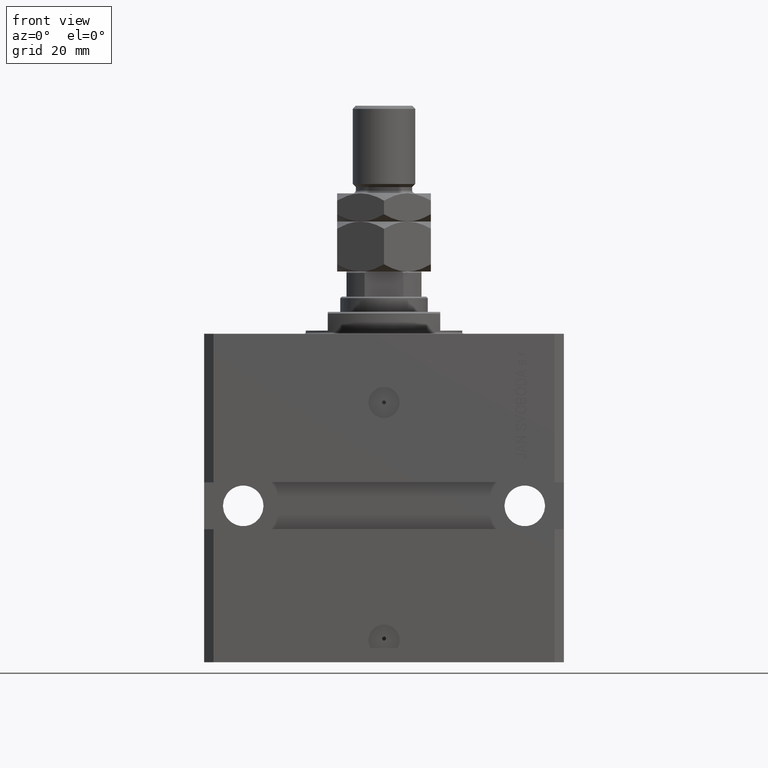
[diagram: clean part render]
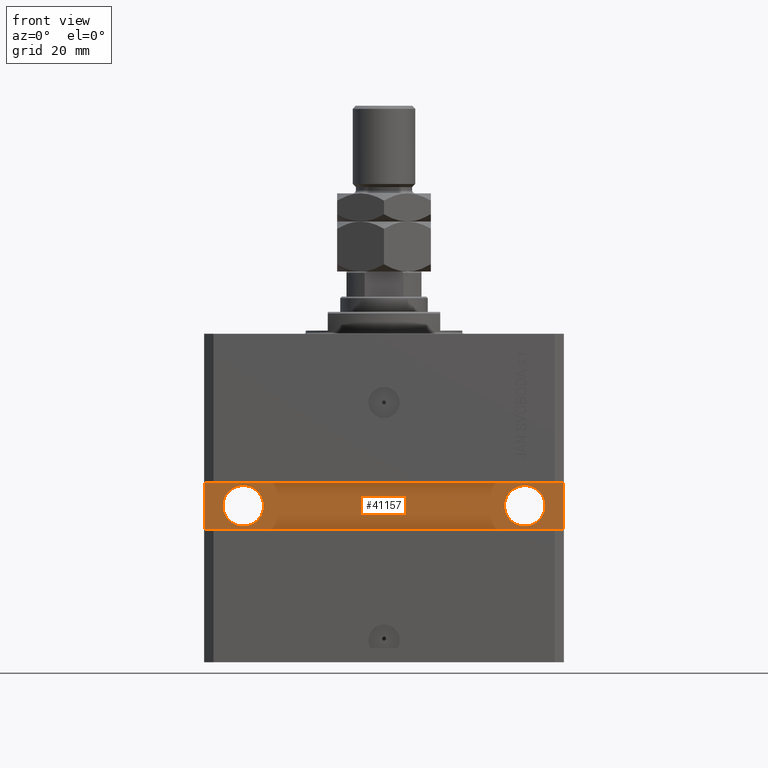
[diagram: same view with one face highlighted and labeled with its STEP entity id]
A machine part, front view. The second image highlights one B-rep face of the part: STEP entity #41157.
In plain terms, the highlighted planar face has unit normal (0, -1, 0).
Its self-contained STEP definition (entity closure, byte-faithful):
#283 = EDGE_CURVE ( 'NONE', #22825, #22924, #6146, .T. ) ;
#676 = CARTESIAN_POINT ( 'NONE',  ( -44.99999999999998579, -40.00000000000000000, -55.00000000000001421 ) ) ;
#725 = CARTESIAN_POINT ( 'NONE',  ( -51.49999999999998579, -40.00000000000000000, -55.00000000000001421 ) ) ;
#931 = CARTESIAN_POINT ( 'NONE',  ( -38.49999999999998579, -40.00000000000000000, -55.00000000000001421 ) ) ;
#1103 = PLANE ( 'NONE',  #8223 ) ;
#1558 = CARTESIAN_POINT ( 'NONE',  ( -57.50000000000000711, -40.00000000000000000, -47.50000000000000711 ) ) ;
#2256 = EDGE_CURVE ( 'NONE', #26719, #3967, #21126, .T. ) ;
#2410 = EDGE_CURVE ( 'NONE', #47964, #25509, #44628, .T. ) ;
#2472 = ORIENTED_EDGE ( 'NONE', *, *, #33843, .T. ) ;
#2858 = CARTESIAN_POINT ( 'NONE',  ( 57.50000000000000711, -39.99999999999998579, -47.49999999999997868 ) ) ;
#3967 = VERTEX_POINT ( 'NONE', #931 ) ;
#4265 = VECTOR ( 'NONE', #20030, 1000.000000000000000 ) ;
#4520 = CARTESIAN_POINT ( 'NONE',  ( 57.50000000000000711, -39.99999999999998579, -62.50000000000000000 ) ) ;
#4654 = DIRECTION ( 'NONE',  ( 1.000000000000000000, 0.000000000000000000, 0.000000000000000000 ) ) ;
#4894 = FACE_BOUND ( 'NONE', #24817, .T. ) ;
#5024 = EDGE_LOOP ( 'NONE', ( #49401, #2472, #10627, #23831 ) ) ;
#6146 = LINE ( 'NONE', #2858, #36461 ) ;
#6229 = ORIENTED_EDGE ( 'NONE', *, *, #2410, .F. ) ;
#7558 = LINE ( 'NONE', #27886, #35887 ) ;
#7810 = DIRECTION ( 'NONE',  ( 1.000000000000000000, 1.206764157201257045E-16, 0.000000000000000000 ) ) ;
#7838 = LINE ( 'NONE', #4520, #4265 ) ;
#8223 = AXIS2_PLACEMENT_3D ( 'NONE', #36179, #16608, #47354 ) ;
#8472 = DIRECTION ( 'NONE',  ( 7.680174481697266334E-17, -1.000000000000000000, 1.232595164407830946E-32 ) ) ;
#9700 = CARTESIAN_POINT ( 'NONE',  ( -44.99999999999998579, -40.00000000000000000, -55.00000000000001421 ) ) ;
#10627 = ORIENTED_EDGE ( 'NONE', *, *, #283, .T. ) ;
#11026 = EDGE_CURVE ( 'NONE', #22924, #23260, #39459, .T. ) ;
#11186 = AXIS2_PLACEMENT_3D ( 'NONE', #28299, #8472, #4654 ) ;
#13813 = AXIS2_PLACEMENT_3D ( 'NONE', #9700, #40468, #33372 ) ;
#16383 = CIRCLE ( 'NONE', #25362, 6.499999999999999112 ) ;
#16608 = DIRECTION ( 'NONE',  ( 1.206764157201257045E-16, -1.000000000000000000, 0.000000000000000000 ) ) ;
#20030 = DIRECTION ( 'NONE',  ( 0.000000000000000000, 0.000000000000000000, 1.000000000000000000 ) ) ;
#21126 = CIRCLE ( 'NONE', #13813, 6.499999999999999112 ) ;
#21305 = VECTOR ( 'NONE', #28035, 1000.000000000000000 ) ;
#22787 = AXIS2_PLACEMENT_3D ( 'NONE', #37944, #49095, #42246 ) ;
#22825 = VERTEX_POINT ( 'NONE', #29630 ) ;
#22924 = VERTEX_POINT ( 'NONE', #27564 ) ;
#23062 = EDGE_CURVE ( 'NONE', #25509, #47964, #36356, .T. ) ;
#23214 = ORIENTED_EDGE ( 'NONE', *, *, #23062, .F. ) ;
#23260 = VERTEX_POINT ( 'NONE', #44525 ) ;
#23831 = ORIENTED_EDGE ( 'NONE', *, *, #11026, .T. ) ;
#24817 = EDGE_LOOP ( 'NONE', ( #29650, #26248 ) ) ;
#25362 = AXIS2_PLACEMENT_3D ( 'NONE', #676, #39324, #31470 ) ;
#25509 = VERTEX_POINT ( 'NONE', #49840 ) ;
#26248 = ORIENTED_EDGE ( 'NONE', *, *, #2256, .F. ) ;
#26719 = VERTEX_POINT ( 'NONE', #725 ) ;
#27151 = CARTESIAN_POINT ( 'NONE',  ( 57.50000000000000711, -39.99999999999998579, -62.50000000000000000 ) ) ;
#27564 = CARTESIAN_POINT ( 'NONE',  ( -57.50000000000000711, -40.00000000000000000, -47.50000000000000711 ) ) ;
#27886 = CARTESIAN_POINT ( 'NONE',  ( -57.50000000000000711, -40.00000000000000000, -62.50000000000000000 ) ) ;
#28035 = DIRECTION ( 'NONE',  ( 0.000000000000000000, 0.000000000000000000, -1.000000000000000000 ) ) ;
#28299 = CARTESIAN_POINT ( 'NONE',  ( 45.00000000000001421, -39.99999999999999289, -55.00000000000000000 ) ) ;
#29630 = CARTESIAN_POINT ( 'NONE',  ( 57.50000000000000711, -39.99999999999998579, -47.49999999999997868 ) ) ;
#29650 = ORIENTED_EDGE ( 'NONE', *, *, #36682, .F. ) ;
#31470 = DIRECTION ( 'NONE',  ( 1.000000000000000000, 0.000000000000000000, 0.000000000000000000 ) ) ;
#32363 = FACE_OUTER_BOUND ( 'NONE', #5024, .T. ) ;
#33372 = DIRECTION ( 'NONE',  ( 1.000000000000000000, 0.000000000000000000, 0.000000000000000000 ) ) ;
#33843 = EDGE_CURVE ( 'NONE', #49414, #22825, #7838, .T. ) ;
#35887 = VECTOR ( 'NONE', #7810, 1000.000000000000000 ) ;
#36179 = CARTESIAN_POINT ( 'NONE',  ( 4.842396851142260860E-15, -39.99999999999999289, 0.000000000000000000 ) ) ;
#36356 = CIRCLE ( 'NONE', #11186, 6.499999999999999112 ) ;
#36461 = VECTOR ( 'NONE', #48589, 1000.000000000000000 ) ;
#36682 = EDGE_CURVE ( 'NONE', #3967, #26719, #16383, .T. ) ;
#36738 = EDGE_CURVE ( 'NONE', #23260, #49414, #7558, .T. ) ;
#37944 = CARTESIAN_POINT ( 'NONE',  ( 45.00000000000001421, -39.99999999999999289, -55.00000000000000000 ) ) ;
#39324 = DIRECTION ( 'NONE',  ( 1.101411730780568590E-16, -1.000000000000000000, 0.000000000000000000 ) ) ;
#39459 = LINE ( 'NONE', #1558, #21305 ) ;
#39488 = FACE_BOUND ( 'NONE', #49815, .T. ) ;
#40468 = DIRECTION ( 'NONE',  ( 1.101411730780568590E-16, -1.000000000000000000, 0.000000000000000000 ) ) ;
#41157 = ADVANCED_FACE ( 'NONE', ( #39488, #4894, #32363 ), #1103, .T. ) ;
#42246 = DIRECTION ( 'NONE',  ( 1.000000000000000000, 0.000000000000000000, 0.000000000000000000 ) ) ;
#44525 = CARTESIAN_POINT ( 'NONE',  ( -57.50000000000000711, -40.00000000000000000, -62.50000000000000000 ) ) ;
#44628 = CIRCLE ( 'NONE', #22787, 6.499999999999999112 ) ;
#47354 = DIRECTION ( 'NONE',  ( 1.000000000000000000, 1.206764157201257045E-16, 0.000000000000000000 ) ) ;
#47964 = VERTEX_POINT ( 'NONE', #49381 ) ;
#48589 = DIRECTION ( 'NONE',  ( -1.000000000000000000, -1.206764157201257045E-16, -2.413528314402514090E-16 ) ) ;
#49095 = DIRECTION ( 'NONE',  ( 7.680174481697266334E-17, -1.000000000000000000, 1.232595164407830946E-32 ) ) ;
#49381 = CARTESIAN_POINT ( 'NONE',  ( 38.50000000000001421, -39.99999999999999289, -55.00000000000000000 ) ) ;
#49401 = ORIENTED_EDGE ( 'NONE', *, *, #36738, .T. ) ;
#49414 = VERTEX_POINT ( 'NONE', #27151 ) ;
#49815 = EDGE_LOOP ( 'NONE', ( #23214, #6229 ) ) ;
#49840 = CARTESIAN_POINT ( 'NONE',  ( 51.50000000000001421, -39.99999999999999289, -55.00000000000000000 ) ) ;